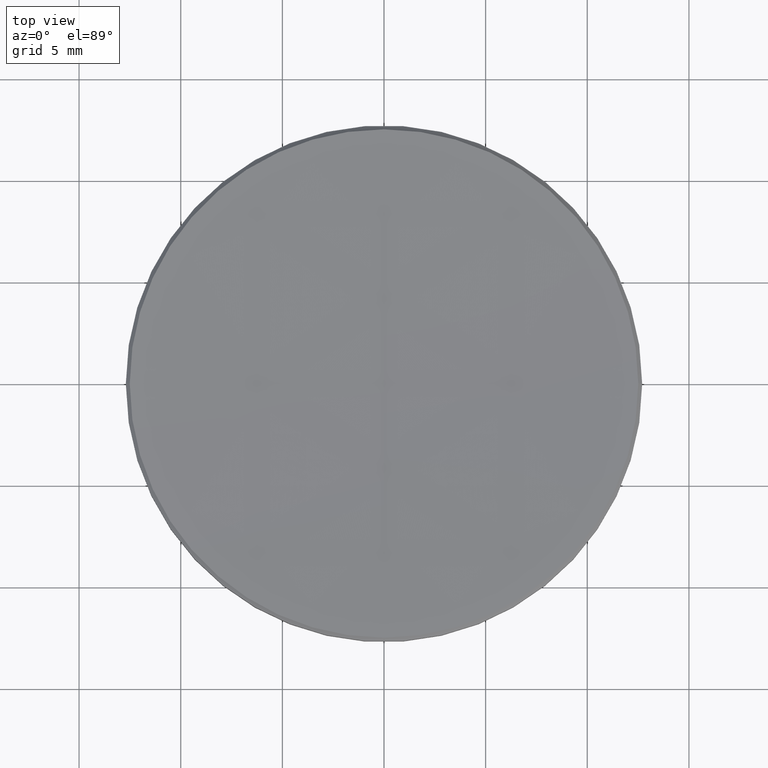
[diagram: clean part render]
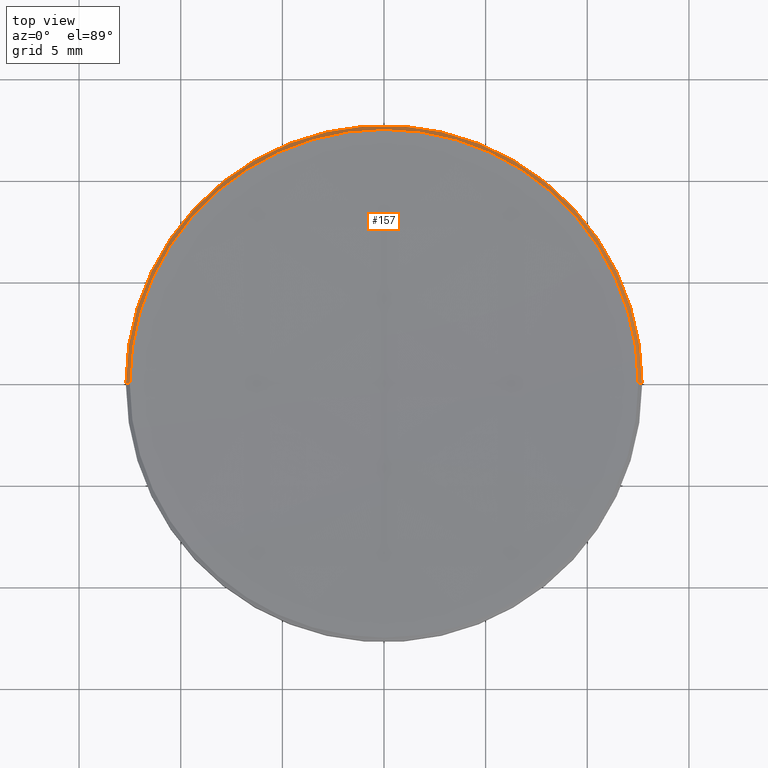
[diagram: same view with one face highlighted and labeled with its STEP entity id]
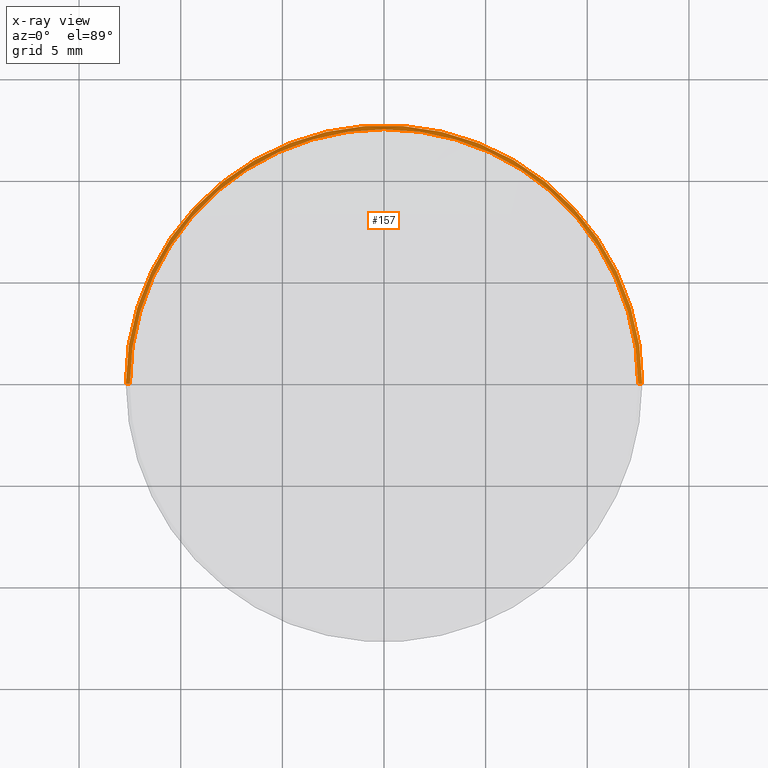
[diagram: x-ray of the same camera — body ghosted, the highlighted face saturated]
A machine part, top view. The second image highlights one B-rep face of the part: STEP entity #157.
The next image is the same camera in x-ray: the body ghosted, the highlighted face saturated — about 0% of this face is hidden behind the body in this view.
In plain terms, the highlighted conical surface has half-angle 45 deg.
Its self-contained STEP definition (entity closure, byte-faithful):
#5 = VECTOR ( 'NONE', #238, 1000.000000000000114 ) ;
#9 = VERTEX_POINT ( 'NONE', #120 ) ;
#10 = CARTESIAN_POINT ( 'NONE',  ( 0.000000000000000000, 12.50735029655037422, 5.992649703450315002 ) ) ;
#15 = AXIS2_PLACEMENT_3D ( 'NONE', #216, #39, #148 ) ;
#22 = CARTESIAN_POINT ( 'NONE',  ( 12.50735029654975961, 1.531708650648435816E-15, 5.992649703450259047 ) ) ;
#31 = LINE ( 'NONE', #272, #5 ) ;
#36 = ORIENTED_EDGE ( 'NONE', *, *, #96, .T. ) ;
#39 = DIRECTION ( 'NONE',  ( -0.000000000000000000, -0.000000000000000000, 1.000000000000000000 ) ) ;
#96 = EDGE_CURVE ( 'NONE', #173, #194, #308, .T. ) ;
#106 = CARTESIAN_POINT ( 'NONE',  ( 12.69999999999999929, 1.555301434917138433E-15, 5.800000000000138378 ) ) ;
#110 = DIRECTION ( 'NONE',  ( -1.000000000000000000, 0.000000000000000000, 0.000000000000000000 ) ) ;
#118 = DIRECTION ( 'NONE',  ( 1.000000000000000000, 0.000000000000000000, 0.000000000000000000 ) ) ;
#120 = CARTESIAN_POINT ( 'NONE',  ( -12.69999999999999929, 0.000000000000000000, 5.800000000000138378 ) ) ;
#126 = DIRECTION ( 'NONE',  ( 1.000000000000000000, 0.000000000000000000, 0.000000000000000000 ) ) ;
#137 = FACE_OUTER_BOUND ( 'NONE', #292, .T. ) ;
#141 = DIRECTION ( 'NONE',  ( -0.000000000000000000, -0.000000000000000000, 1.000000000000000000 ) ) ;
#147 = ORIENTED_EDGE ( 'NONE', *, *, #246, .F. ) ;
#148 = DIRECTION ( 'NONE',  ( 1.000000000000000000, 0.000000000000000000, 0.000000000000000000 ) ) ;
#157 = ADVANCED_FACE ( 'NONE', ( #137 ), #301, .T. ) ;
#165 = CIRCLE ( 'NONE', #270, 12.69999999999999929 ) ;
#173 = VERTEX_POINT ( 'NONE', #284 ) ;
#176 = VECTOR ( 'NONE', #279, 1000.000000000000114 ) ;
#194 = VERTEX_POINT ( 'NONE', #106 ) ;
#216 = CARTESIAN_POINT ( 'NONE',  ( 0.000000000000000000, 0.000000000000000000, 5.992649703450315002 ) ) ;
#221 = ORIENTED_EDGE ( 'NONE', *, *, #267, .F. ) ;
#238 = DIRECTION ( 'NONE',  ( -0.7071067811867671749, 0.000000000000000000, -0.7071067811863278596 ) ) ;
#246 = EDGE_CURVE ( 'NONE', #9, #194, #165, .T. ) ;
#249 = AXIS2_PLACEMENT_3D ( 'NONE', #264, #141, #126 ) ;
#260 = CIRCLE ( 'NONE', #249, 12.50735029654974895 ) ;
#264 = CARTESIAN_POINT ( 'NONE',  ( 0.000000000000000000, 0.000000000000000000, 5.992649703450315002 ) ) ;
#267 = EDGE_CURVE ( 'NONE', #318, #9, #31, .T. ) ;
#269 = ORIENTED_EDGE ( 'NONE', *, *, #282, .F. ) ;
#270 = AXIS2_PLACEMENT_3D ( 'NONE', #286, #312, #118 ) ;
#272 = CARTESIAN_POINT ( 'NONE',  ( -12.50735029654975961, 0.000000000000000000, 5.992649703450259047 ) ) ;
#273 = VERTEX_POINT ( 'NONE', #10 ) ;
#275 = ORIENTED_EDGE ( 'NONE', *, *, #320, .F. ) ;
#277 = CARTESIAN_POINT ( 'NONE',  ( 0.000000000000000000, 0.000000000000000000, 5.992649703450259047 ) ) ;
#279 = DIRECTION ( 'NONE',  ( 0.7071067811867671749, 8.659560562357622381E-17, -0.7071067811863278596 ) ) ;
#282 = EDGE_CURVE ( 'NONE', #273, #318, #289, .T. ) ;
#284 = CARTESIAN_POINT ( 'NONE',  ( 12.50735029654974895, 1.543505042782786336E-15, 5.992649703450315002 ) ) ;
#286 = CARTESIAN_POINT ( 'NONE',  ( 0.000000000000000000, 0.000000000000000000, 5.800000000000138378 ) ) ;
#287 = CARTESIAN_POINT ( 'NONE',  ( -12.50735029654974895, 0.000000000000000000, 5.992649703450315002 ) ) ;
#289 = CIRCLE ( 'NONE', #15, 12.50735029654974895 ) ;
#292 = EDGE_LOOP ( 'NONE', ( #275, #36, #147, #221, #269 ) ) ;
#295 = AXIS2_PLACEMENT_3D ( 'NONE', #277, #304, #110 ) ;
#301 = CONICAL_SURFACE ( 'NONE', #295, 12.50735029654975961, 0.7853981633977589194 ) ;
#304 = DIRECTION ( 'NONE',  ( 0.000000000000000000, 0.000000000000000000, -1.000000000000000000 ) ) ;
#308 = LINE ( 'NONE', #22, #176 ) ;
#312 = DIRECTION ( 'NONE',  ( 0.000000000000000000, 0.000000000000000000, -1.000000000000000000 ) ) ;
#318 = VERTEX_POINT ( 'NONE', #287 ) ;
#320 = EDGE_CURVE ( 'NONE', #173, #273, #260, .T. ) ;